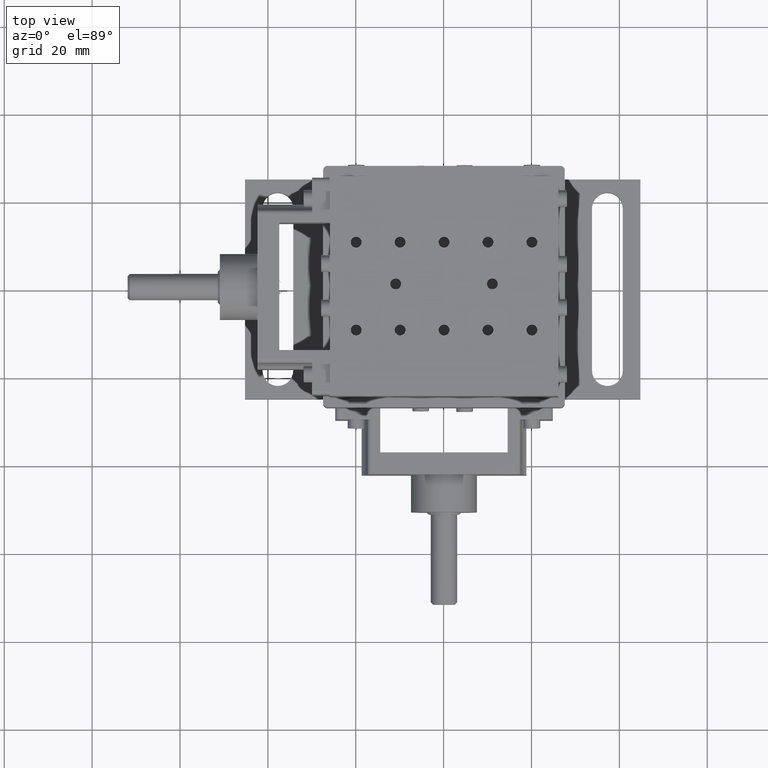
[diagram: clean part render]
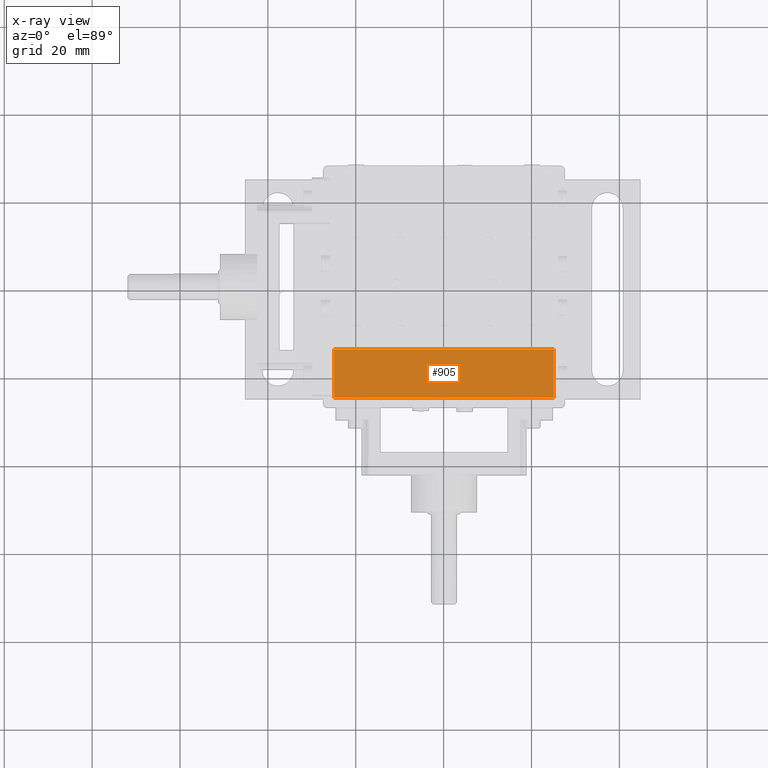
[diagram: x-ray — body ghosted, one internal face saturated and labeled with its STEP entity id]
A machine part, top view, then the same camera in x-ray: the body is ghosted and one INTERNAL B-rep face — a face not visible from any outside direction — is saturated and labeled: STEP entity #905.
In plain terms, the highlighted face is a freeform B-spline surface patch.
Its self-contained STEP definition (entity closure, byte-faithful):
#905=ADVANCED_FACE('',(#2089),#38480,.T.);
#2089=FACE_OUTER_BOUND('',#3311,.T.);
#3311=EDGE_LOOP('',(#5070,#5071,#5072,#5073));
#5070=ORIENTED_EDGE('',*,*,#31768,.T.);
#5071=ORIENTED_EDGE('',*,*,#31729,.F.);
#5072=ORIENTED_EDGE('',*,*,#31769,.T.);
#5073=ORIENTED_EDGE('',*,*,#31770,.T.);
#10809=PCURVE('',#38478,#16588);
#10849=PCURVE('',#38480,#16628);
#10850=PCURVE('',#38480,#16629);
#10851=PCURVE('',#38480,#16630);
#10852=PCURVE('',#38480,#16631);
#10899=PCURVE('',#38484,#16678);
#11353=PCURVE('',#38498,#17132);
#11409=PCURVE('',#38509,#17188);
#16588=DEFINITIONAL_REPRESENTATION('',(#22418),#87459);
#16628=DEFINITIONAL_REPRESENTATION('',(#22441),#87459);
#16629=DEFINITIONAL_REPRESENTATION('',(#22442),#87459);
#16630=DEFINITIONAL_REPRESENTATION('',(#22444),#87459);
#16631=DEFINITIONAL_REPRESENTATION('',(#22446),#87459);
#16678=DEFINITIONAL_REPRESENTATION('',(#22488),#87459);
#17132=DEFINITIONAL_REPRESENTATION('',(#23088),#87459);
#17188=DEFINITIONAL_REPRESENTATION('',(#23143),#87459);
#22417=B_SPLINE_CURVE_WITH_KNOTS('',1,(#44942,#44943),.UNSPECIFIED.,.F.,
 .F.,(2,2),(-50.,0.),.UNSPECIFIED.);
#22418=B_SPLINE_CURVE_WITH_KNOTS('',1,(#44944,#44945),.UNSPECIFIED.,.F.,
 .F.,(2,2),(-50.,0.),.UNSPECIFIED.);
#22440=B_SPLINE_CURVE_WITH_KNOTS('',1,(#45268,#45269),.UNSPECIFIED.,.F.,
 .F.,(2,2),(0.,11.),.UNSPECIFIED.);
#22441=B_SPLINE_CURVE_WITH_KNOTS('',1,(#45270,#45271),.UNSPECIFIED.,.F.,
 .F.,(2,2),(0.,11.),.UNSPECIFIED.);
#22442=B_SPLINE_CURVE_WITH_KNOTS('',1,(#45272,#45273),.UNSPECIFIED.,.F.,
 .F.,(2,2),(-50.,0.),.UNSPECIFIED.);
#22443=B_SPLINE_CURVE_WITH_KNOTS('',1,(#45274,#45275),.UNSPECIFIED.,.F.,
 .F.,(2,2),(0.,11.),.UNSPECIFIED.);
#22444=B_SPLINE_CURVE_WITH_KNOTS('',1,(#45276,#45277),.UNSPECIFIED.,.F.,
 .F.,(2,2),(0.,11.),.UNSPECIFIED.);
#22445=B_SPLINE_CURVE_WITH_KNOTS('',1,(#45278,#45279),.UNSPECIFIED.,.F.,
 .F.,(2,2),(0.,50.),.UNSPECIFIED.);
#22446=B_SPLINE_CURVE_WITH_KNOTS('',1,(#45280,#45281),.UNSPECIFIED.,.F.,
 .F.,(2,2),(0.,50.),.UNSPECIFIED.);
#22488=B_SPLINE_CURVE_WITH_KNOTS('',1,(#45604,#45605),.UNSPECIFIED.,.F.,
 .F.,(2,2),(0.,50.),.UNSPECIFIED.);
#23088=B_SPLINE_CURVE_WITH_KNOTS('',1,(#47654,#47655),.UNSPECIFIED.,.F.,
 .F.,(2,2),(0.,11.),.UNSPECIFIED.);
#23143=B_SPLINE_CURVE_WITH_KNOTS('',1,(#47816,#47817),.UNSPECIFIED.,.F.,
 .F.,(2,2),(0.,11.),.UNSPECIFIED.);
#28780=SURFACE_CURVE('',#22417,(#10809,#10850),.PCURVE_S1.);
#28819=SURFACE_CURVE('',#22440,(#10849,#11409),.PCURVE_S1.);
#28820=SURFACE_CURVE('',#22443,(#10851,#11353),.PCURVE_S1.);
#28821=SURFACE_CURVE('',#22445,(#10852,#10899),.PCURVE_S1.);
#31729=EDGE_CURVE('',#36718,#36715,#28780,.T.);
#31768=EDGE_CURVE('',#36751,#36715,#28819,.T.);
#31769=EDGE_CURVE('',#36718,#36752,#28820,.T.);
#31770=EDGE_CURVE('',#36752,#36751,#28821,.T.);
#36715=VERTEX_POINT('',#42751);
#36718=VERTEX_POINT('',#42754);
#36751=VERTEX_POINT('',#42787);
#36752=VERTEX_POINT('',#42788);
#38478=B_SPLINE_SURFACE_WITH_KNOTS('',1,1,((#40625,#40626),(#40627,#40628)),
 .UNSPECIFIED.,.F.,.F.,.F.,(2,2),(2,2),(-2.32000000000008,24.32),(-6.31999999999998,
56.3199999999997),.UNSPECIFIED.);
#38480=B_SPLINE_SURFACE_WITH_KNOTS('',1,1,((#40633,#40634),(#40635,#40636)),
 .UNSPECIFIED.,.F.,.F.,.F.,(2,2),(2,2),(-30.12,30.1200000000001),(-26.2200000000001,
-12.7799999999999),.UNSPECIFIED.);
#38484=B_SPLINE_SURFACE_WITH_KNOTS('',1,1,((#40649,#40650),(#40651,#40652)),
 .UNSPECIFIED.,.F.,.F.,.F.,(2,2),(2,2),(-5.12,55.12),(-0.32000000000009,
2.32000000000012),.UNSPECIFIED.);
#38498=B_SPLINE_SURFACE_WITH_KNOTS('',1,1,((#42273,#42274),(#42275,#42276)),
 .UNSPECIFIED.,.F.,.F.,.F.,(2,2),(2,2),(-0.320000000000034,2.32000000000011),
(-1.22,12.22),.UNSPECIFIED.);
#38509=B_SPLINE_SURFACE_WITH_KNOTS('',1,1,((#42317,#42318),(#42319,#42320)),
 .UNSPECIFIED.,.F.,.F.,.F.,(2,2),(2,2),(-2.31999999999999,0.320000000000034),
(-51.22,-37.78),.UNSPECIFIED.);
#40625=CARTESIAN_POINT('',(31.4035471895049,-25.0739224317622,40.1990559995545));
#40626=CARTESIAN_POINT('',(-31.2364528104948,-25.0739224317622,40.1990559995546));
#40627=CARTESIAN_POINT('',(31.4035471895049,-25.0739224317623,66.8390559995546));
#40628=CARTESIAN_POINT('',(-31.2364528104948,-25.0739224317622,66.8390559995547));
#40633=CARTESIAN_POINT('',(30.2035471895049,-26.2939224317623,42.5190559995546));
#40634=CARTESIAN_POINT('',(30.2035471895049,-12.8539224317621,42.5190559995546));
#40635=CARTESIAN_POINT('',(-30.0364528104951,-26.2939224317623,42.5190559995547));
#40636=CARTESIAN_POINT('',(-30.0364528104951,-12.8539224317621,42.5190559995547));
#40649=CARTESIAN_POINT('',(30.2035471895049,-14.0739224317623,42.1990559995545));
#40650=CARTESIAN_POINT('',(30.2035471895049,-14.0739224317623,44.8390559995547));
#40651=CARTESIAN_POINT('',(-30.0364528104951,-14.0739224317622,42.1990559995546));
#40652=CARTESIAN_POINT('',(-30.0364528104951,-14.0739224317622,44.8390559995548));
#42273=CARTESIAN_POINT('',(-24.9164528104951,-26.2939224317621,42.1990559995545));
#42274=CARTESIAN_POINT('',(-24.9164528104951,-12.8539224317621,42.1990559995546));
#42275=CARTESIAN_POINT('',(-24.9164528104951,-26.2939224317622,44.8390559995547));
#42276=CARTESIAN_POINT('',(-24.9164528104951,-12.8539224317621,44.8390559995547));
#42317=CARTESIAN_POINT('',(25.083547189505,-26.2939224317622,44.8390559995546));
#42318=CARTESIAN_POINT('',(25.083547189505,-12.8539224317622,44.8390559995546));
#42319=CARTESIAN_POINT('',(25.0835471895049,-26.2939224317622,42.1990559995545));
#42320=CARTESIAN_POINT('',(25.083547189505,-12.8539224317622,42.1990559995546));
#42751=CARTESIAN_POINT('',(25.0835471895049,-25.0739224317622,42.5190559995546));
#42754=CARTESIAN_POINT('',(-24.9164528104951,-25.0739224317622,42.5190559995546));
#42787=CARTESIAN_POINT('',(25.0835471895049,-14.0739224317622,42.5190559995546));
#42788=CARTESIAN_POINT('',(-24.9164528104951,-14.0739224317622,42.5190559995547));
#44942=CARTESIAN_POINT('',(-24.9164528104951,-25.0739224317622,42.5190559995546));
#44943=CARTESIAN_POINT('',(25.0835471895049,-25.0739224317622,42.5190559995546));
#44944=CARTESIAN_POINT('',(-7.07580704867646E-14,50.));
#44945=CARTESIAN_POINT('',(0.,0.));
#45268=CARTESIAN_POINT('',(25.0835471895049,-14.0739224317622,42.5190559995546));
#45269=CARTESIAN_POINT('',(25.0835471895049,-25.0739224317622,42.5190559995546));
#45270=CARTESIAN_POINT('',(-25.,-14.));
#45271=CARTESIAN_POINT('',(-25.,-25.));
#45272=CARTESIAN_POINT('',(25.,-25.));
#45273=CARTESIAN_POINT('',(-25.,-25.));
#45274=CARTESIAN_POINT('',(-24.9164528104951,-25.0739224317622,42.5190559995546));
#45275=CARTESIAN_POINT('',(-24.9164528104951,-14.0739224317622,42.5190559995547));
#45276=CARTESIAN_POINT('',(25.,-25.));
#45277=CARTESIAN_POINT('',(25.,-14.));
#45278=CARTESIAN_POINT('',(-24.9164528104951,-14.0739224317622,42.5190559995547));
#45279=CARTESIAN_POINT('',(25.0835471895049,-14.0739224317622,42.5190559995546));
#45280=CARTESIAN_POINT('',(25.,-14.));
#45281=CARTESIAN_POINT('',(-25.,-14.));
#45604=CARTESIAN_POINT('',(50.,2.87179125196494E-14));
#45605=CARTESIAN_POINT('',(0.,0.));
#47654=CARTESIAN_POINT('',(0.,0.));
#47655=CARTESIAN_POINT('',(7.99401601862909E-14,11.));
#47816=CARTESIAN_POINT('',(3.02126111896137E-14,-39.));
#47817=CARTESIAN_POINT('',(1.06767883694906E-14,-50.));
#87459=(
GEOMETRIC_REPRESENTATION_CONTEXT(2)
PARAMETRIC_REPRESENTATION_CONTEXT()
REPRESENTATION_CONTEXT('pspace','')
);